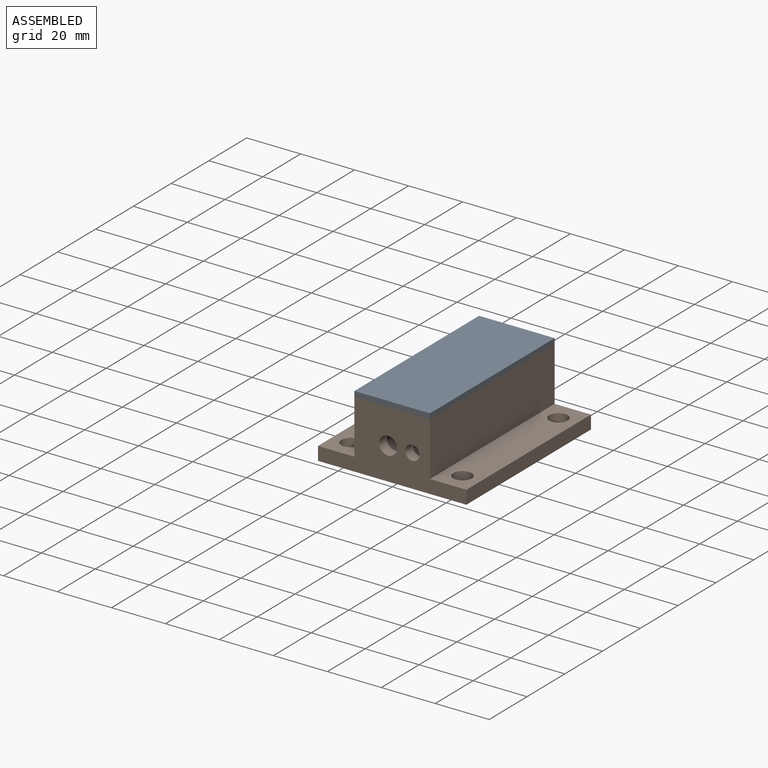
[diagram: assembled view]
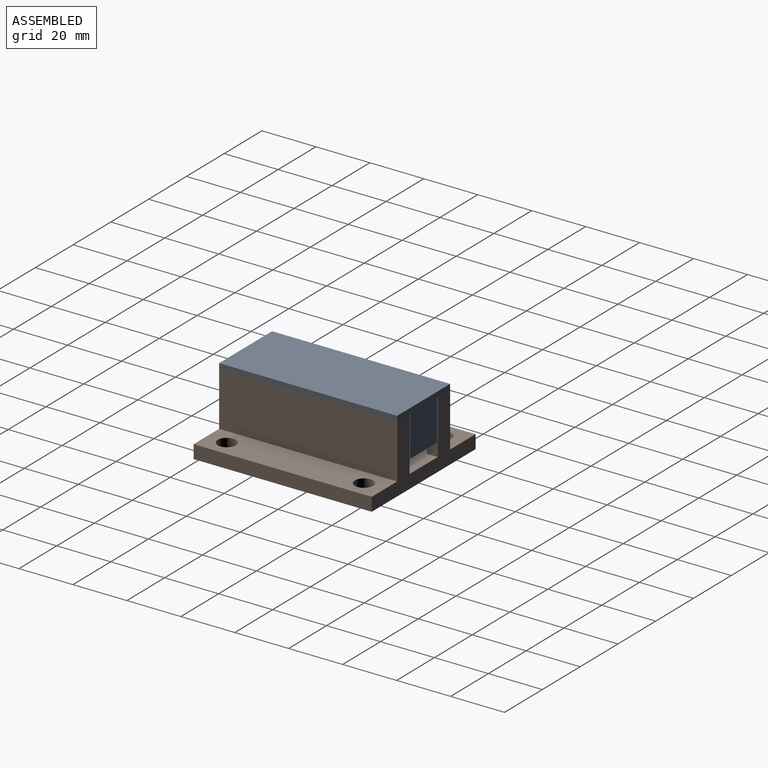
[diagram: assembled view, second angle]
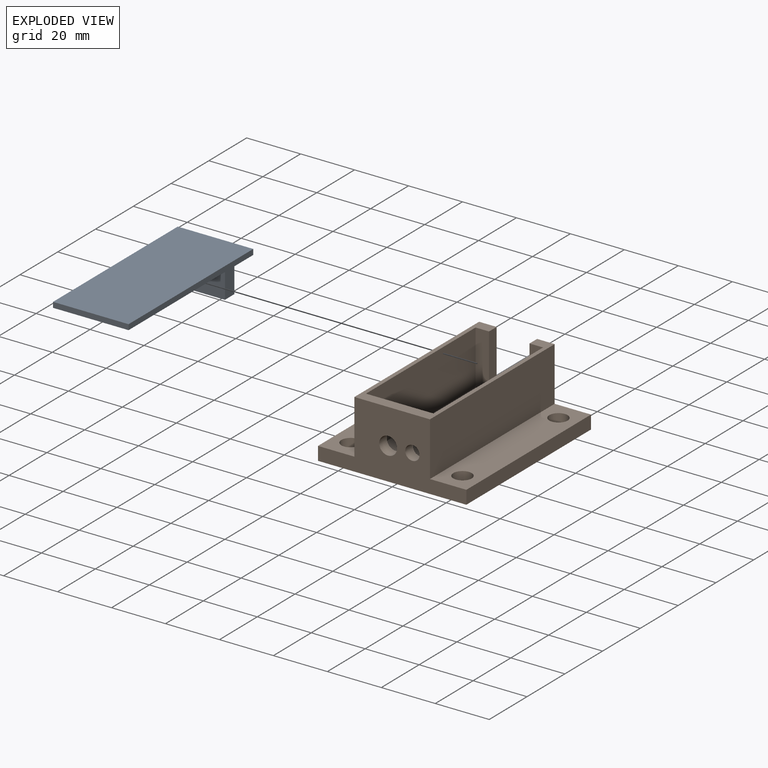
[diagram: exploded view]
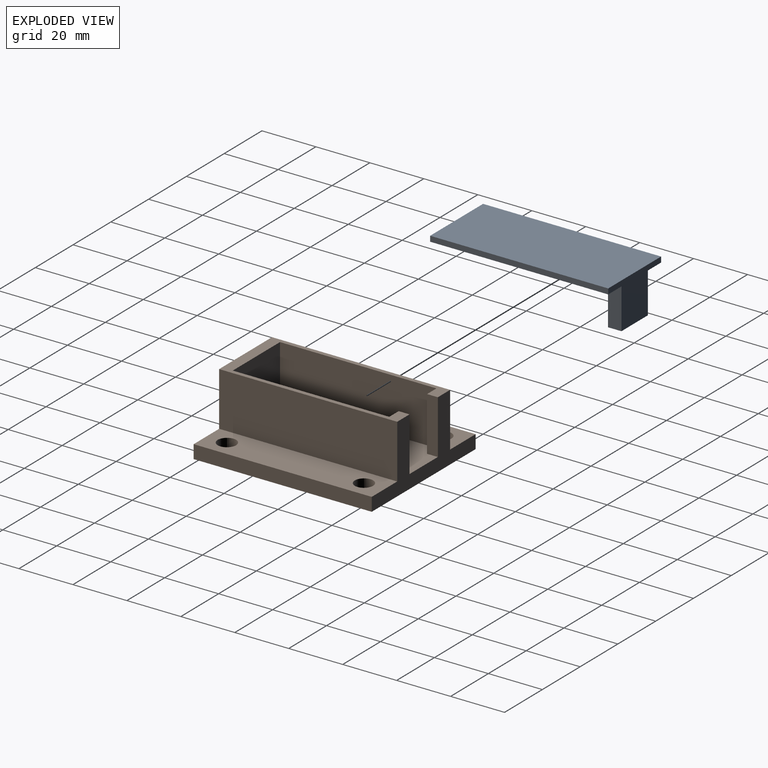
[diagram: exploded view, second angle]
ASSEMBLY  parts=2 mates=3
PART A: 16 faces, bbox 28x66x17 mm
  f0: plane 66x28mm, normal (0,0,1), area 490mm2, adj f1,f2,f3,f4,f5,f7,f8,f9
  f1: plane 4.5x1mm, normal (0,1,0), area 4.5mm2, adj f0,f7,f11,f14
  f2: plane 66x2mm, normal (1,0,0), area 132mm2, adj f0,f3,f5,f6
  f3: plane 28x17mm, normal (0,1,0), area 266mm2, adj f0,f2,f4,f6,f13,f14,f15
  f4: plane 66x2mm, normal (-1,0,0), area 132mm2, adj f0,f3,f5,f6
  f5: plane 28x2mm, normal (0,-1,0), area 56mm2, adj f0,f2,f4,f6
  f6: plane 66x28mm, normal (0,0,-1), area 1848mm2, adj f2,f3,f4,f5
  f7: plane 56x1mm, normal (1,0,0), area 56mm2, adj f0,f1,f10,f11
  f8: plane 4.5x1mm, normal (0,1,0), area 4.5mm2, adj f0,f9,f11,f13
  f9: plane 56x1mm, normal (-1,0,0), area 56mm2, adj f0,f8,f10,f11
  f10: plane 23x1mm, normal (0,-1,0), area 23mm2, adj f0,f7,f9,f11
  f11: plane 56x23mm, normal (0,0,1), area 1288mm2, adj f1,f7,f8,f9,f10,f12
  f12: plane 14x14mm, normal (0,-1,0), area 196mm2, adj f11,f13,f14,f15
  f13: plane 15x5mm, normal (-1,0,0), area 75mm2, adj f0,f3,f8,f12,f15
  f14: plane 15x5mm, normal (1,0,0), area 75mm2, adj f0,f1,f3,f12,f15
  f15: plane 14x5mm, normal (0,0,1), area 70mm2, adj f3,f12,f13,f14
PART B: 24 faces, bbox 55x66x25 mm
  f0: plane 66x28mm, normal (0,0,1), area 338mm2, adj f1,f5,f6,f9,f10,f11,f12,f13
  f1: plane 20x5mm, normal (0,-1,0), area 100mm2, adj f0,f13,f15,f23
  f2: plane 66x55mm, normal (0,0,-1), area 3484.7mm2, adj f3,f8,f9,f10,f16,f17,f18,f19
  f3: plane 66x5mm, normal (1,0,0), area 330mm2, adj f2,f4,f9,f10
  f4: plane 66x13.5mm, normal (0,0,1), area 818.4mm2, adj f3,f5,f9,f10,f18,f19
  f5: plane 66x20mm, normal (1,0,0), area 1320mm2, adj f0,f4,f9,f10
  f6: plane 66x20mm, normal (-1,0,0), area 1320mm2, adj f0,f7,f9,f10
  f7: plane 66x13.5mm, normal (0,0,1), area 818.4mm2, adj f6,f8,f9,f10,f16,f17
  f8: plane 66x5mm, normal (-1,0,0), area 330mm2, adj f2,f7,f9,f10
  f9: plane 55x25mm, normal (0,1,0), area 535mm2, adj f0,f2,f3,f4,f5,f6,f7,f8
  f10: plane 55x25mm, normal (0,-1,0), area 778.7mm2, adj f0,f2,f3,f4,f5,f6,f7,f8
  f11: plane 58x20mm, normal (-1,0,0), area 1160mm2, adj f0,f12,f14,f15
  f12: plane 20x5mm, normal (0,-1,0), area 100mm2, adj f0,f11,f15,f22
  f13: plane 58x20mm, normal (1,0,0), area 1160mm2, adj f0,f1,f14,f15
  f14: plane 25x20mm, normal (0,1,0), area 443.7mm2, adj f0,f11,f13,f15,f20,f21
  f15: plane 62x25mm, normal (0,0,1), area 1510mm2, adj f1,f9,f11,f12,f13,f14,f22,f23
  f16: cylinder r=3.4mm len=6.8mm, axis (0,0,1), area 106.8mm2, adj f2,f7
  f17: cylinder r=3.4mm len=6.8mm, axis (0,0,1), area 106.8mm2, adj f2,f7
  f18: cylinder r=3.4mm len=6.8mm, axis (0,0,1), area 106.8mm2, adj f2,f4
  f19: cylinder r=3.4mm len=6.8mm, axis (0,0,1), area 106.8mm2, adj f2,f4
  f20: cylinder r=2.65mm len=5.3mm, axis (0,-1,0), area 66.6mm2, adj f10,f14
  f21: cylinder r=3.3mm len=6.6mm, axis (0,-1,0), area 82.9mm2, adj f10,f14
  f22: plane 20x4mm, normal (-1,0,0), area 80mm2, adj f0,f9,f12,f15
  f23: plane 20x4mm, normal (1,0,0), area 80mm2, adj f0,f1,f9,f15
PLACE A rot(axis=(0,1,0),180deg) t=(0,33,27)mm
PLACE B at identity fixed
MATE planar B.f5 <-> A.f4  axis (1,0,0) through (14,33,15)mm
MATE planar A.f0 <-> B.f0  axis (0,0,-1) through (11.5,5,25)mm
MATE planar B.f10 <-> A.f5  axis (0,-1,0) through (-0.15,0,10.8)mm
